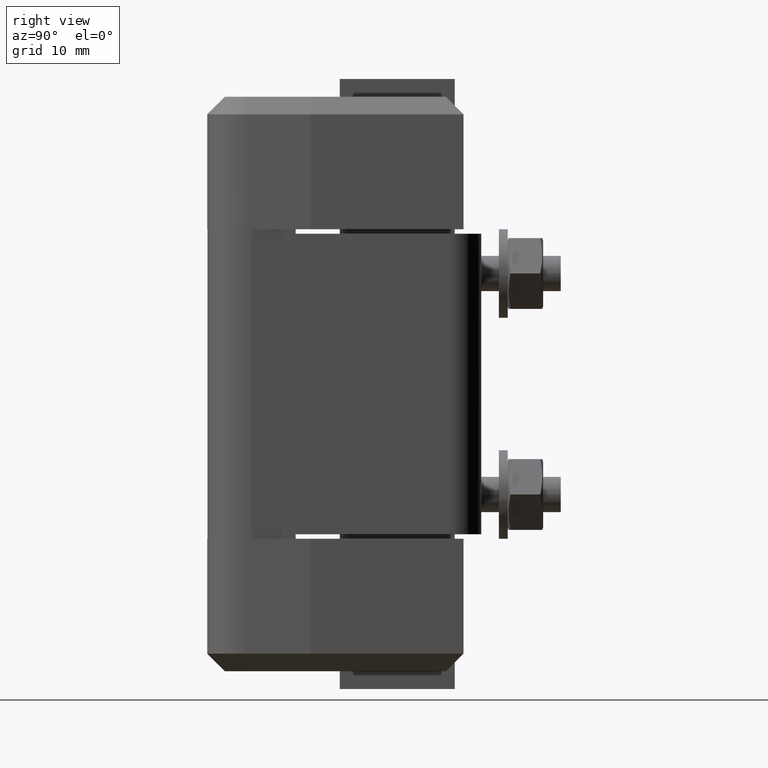
[diagram: clean part render]
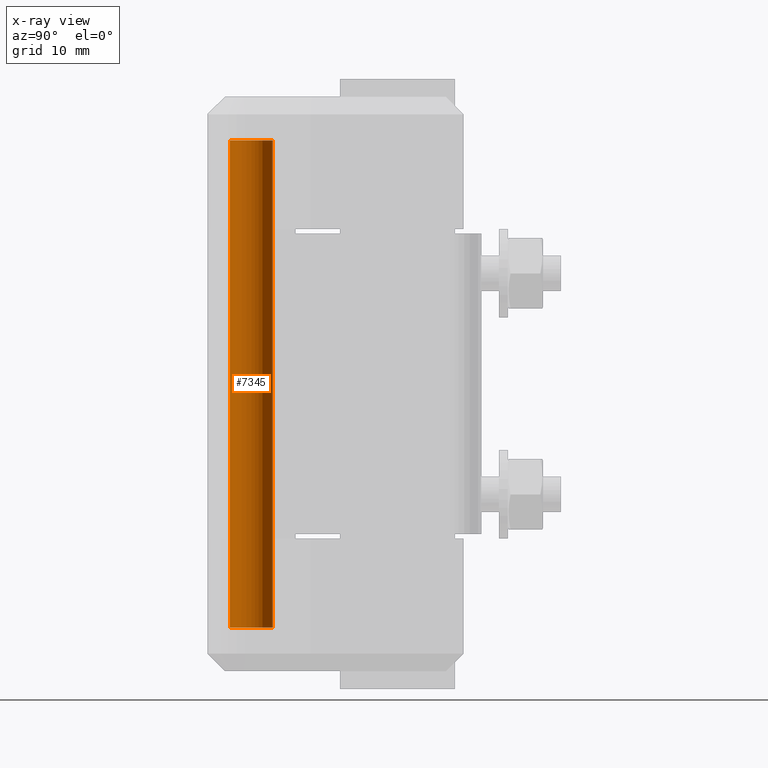
[diagram: x-ray — body ghosted, one internal face saturated and labeled with its STEP entity id]
A machine part, right view, then the same camera in x-ray: the body is ghosted and one INTERNAL B-rep face — a face not visible from any outside direction — is saturated and labeled: STEP entity #7345.
In plain terms, the highlighted face is a freeform B-spline surface patch.
Its self-contained STEP definition (entity closure, byte-faithful):
#7155=CARTESIAN_POINT('',(0.149568921871433,-2.445430256132825,60.050002134125783));
#7156=VERTEX_POINT('',#7155);
#7162=CARTESIAN_POINT('',(2.450000000000000,0.0,60.050002134125712));
#7163=VERTEX_POINT('',#7162);
#7164=CARTESIAN_POINT('',(2.450000000000000,0.0,60.050002134125712));
#7165=CARTESIAN_POINT('',(2.450000000000000,-2.304729863877276,60.050002134125691));
#7166=CARTESIAN_POINT('',(0.149568921871432,-2.445430256132825,60.050002134125776));
#7174=(BOUNDED_CURVE()B_SPLINE_CURVE(2,(#7164,#7165,#7166),.UNSPECIFIED.,.F.,.U.)B_SPLINE_CURVE_WITH_KNOTS((3,3),(0.500000000000000,0.739332962238854),.UNSPECIFIED.)CURVE()GEOMETRIC_REPRESENTATION_ITEM()RATIONAL_B_SPLINE_CURVE((1.0,0.719603993286814,0.976072041666527))REPRESENTATION_ITEM(''));
#7175=EDGE_CURVE('',#7163,#7156,#7174,.T.);
#7177=CARTESIAN_POINT('',(0.279546628680214,2.433999523909880,60.050002134125712));
#7178=VERTEX_POINT('',#7177);
#7179=CARTESIAN_POINT('',(0.279546628680214,2.433999523909880,60.050002134125712));
#7180=CARTESIAN_POINT('',(2.450000000000000,2.184721363891480,60.050002134125698));
#7181=CARTESIAN_POINT('',(2.450000000000000,0.0,60.050002134125712));
#7189=(BOUNDED_CURVE()B_SPLINE_CURVE(2,(#7179,#7180,#7181),.UNSPECIFIED.,.F.,.U.)B_SPLINE_CURVE_WITH_KNOTS((3,3),(0.269767755885833,0.500000000000000),.UNSPECIFIED.)CURVE()GEOMETRIC_REPRESENTATION_ITEM()RATIONAL_B_SPLINE_CURVE((0.957343736442468,0.730266147787029,1.0))REPRESENTATION_ITEM(''));
#7190=EDGE_CURVE('',#7178,#7163,#7189,.T.);
#7281=CARTESIAN_POINT('',(0.279546628613883,2.433999523917499,61.427502211332367));
#7282=CARTESIAN_POINT('',(2.320042101787359,2.199647123835899,61.427502211332353));
#7283=CARTESIAN_POINT('',(2.445430256133574,0.149568921860400,61.427502211332360));
#7284=CARTESIAN_POINT('',(2.594999177993973,-2.295861334273174,61.427502211332360));
#7285=CARTESIAN_POINT('',(0.149568921860400,-2.445430256133574,61.427502211332360));
#7286=CARTESIAN_POINT('',(0.279546628613883,2.433999523917499,3.538061466723178));
#7287=CARTESIAN_POINT('',(2.320042101787359,2.199647123835899,3.538061466723177));
#7288=CARTESIAN_POINT('',(2.445430256133574,0.149568921860400,3.538061466723178));
#7289=CARTESIAN_POINT('',(2.594999177993973,-2.295861334273174,3.538061466723178));
#7290=CARTESIAN_POINT('',(0.149568921860400,-2.445430256133574,3.538061466723178));
#7298=(BOUNDED_SURFACE()B_SPLINE_SURFACE(2,1,((#7281,#7286),(#7282,#7287),(#7283,#7288),(#7284,#7289),(#7285,#7290)),.UNSPECIFIED.,.F.,.F.,.U.)B_SPLINE_SURFACE_WITH_KNOTS((3,2,3),(2,2),(0.0,3.572177761905570,7.631470673161901),(0.0,57.889440744609189),.UNSPECIFIED.)GEOMETRIC_REPRESENTATION_ITEM()RATIONAL_B_SPLINE_SURFACE(((0.938140952186599,0.938140952186599),(0.742253967444162,0.742253967444162),(1.0,1.0),(0.707106781186548,0.707106781186548),(1.0,1.0)))REPRESENTATION_ITEM('')SURFACE());
#7299=CARTESIAN_POINT('',(0.279546628656408,2.433999523912615,4.949999045859991));
#7300=VERTEX_POINT('',#7299);
#7301=CARTESIAN_POINT('',(2.450000000000000,0.0,4.949999045859990));
#7302=VERTEX_POINT('',#7301);
#7303=CARTESIAN_POINT('',(0.279546628656408,2.433999523912614,4.949999045859991));
#7304=CARTESIAN_POINT('',(2.450000000000000,2.184721363934496,4.949999045859989));
#7305=CARTESIAN_POINT('',(2.450000000000000,0.0,4.949999045859990));
#7313=(BOUNDED_CURVE()B_SPLINE_CURVE(2,(#7303,#7304,#7305),.UNSPECIFIED.,.F.,.U.)B_SPLINE_CURVE_WITH_KNOTS((3,3),(0.269767755882523,0.500000000000000),.UNSPECIFIED.)CURVE()GEOMETRIC_REPRESENTATION_ITEM()RATIONAL_B_SPLINE_CURVE((0.957343736448999,0.730266147783150,1.0))REPRESENTATION_ITEM(''));
#7314=EDGE_CURVE('',#7300,#7302,#7313,.T.);
#7315=ORIENTED_EDGE('',*,*,#7314,.F.);
#7316=CARTESIAN_POINT('',(0.279546628680214,2.433999523909880,60.050002134125712));
#7317=CARTESIAN_POINT('',(0.279546628656408,2.433999523912615,4.949999045859991));
#7318=QUASI_UNIFORM_CURVE('',1,(#7316,#7317),.UNSPECIFIED.,.F.,.U.);
#7319=EDGE_CURVE('',#7178,#7300,#7318,.T.);
#7320=ORIENTED_EDGE('',*,*,#7319,.F.);
#7321=ORIENTED_EDGE('',*,*,#7190,.T.);
#7322=ORIENTED_EDGE('',*,*,#7175,.T.);
#7323=CARTESIAN_POINT('',(0.170896853889385,-2.443938861925631,4.949999045949983));
#7324=VERTEX_POINT('',#7323);
#7325=CARTESIAN_POINT('',(0.149568921871433,-2.445430256132825,60.050002134125783));
#7326=CARTESIAN_POINT('',(0.170896853889385,-2.443938861925631,4.949999045949983));
#7327=QUASI_UNIFORM_CURVE('',1,(#7325,#7326),.UNSPECIFIED.,.F.,.U.);
#7328=EDGE_CURVE('',#7156,#7324,#7327,.T.);
#7329=ORIENTED_EDGE('',*,*,#7328,.T.);
#7330=CARTESIAN_POINT('',(2.450000000000000,0.0,4.949999045859990));
#7331=CARTESIAN_POINT('',(2.449996746264741,-2.284615429812233,4.949999045904987));
#7332=CARTESIAN_POINT('',(0.170896853889385,-2.443938861925631,4.949999045949983));
#7340=(BOUNDED_CURVE()B_SPLINE_CURVE(2,(#7330,#7331,#7332),.UNSPECIFIED.,.F.,.U.)B_SPLINE_CURVE_WITH_KNOTS((3,3),(0.500000000000000,0.737829682948638),.UNSPECIFIED.)CURVE()GEOMETRIC_REPRESENTATION_ITEM()RATIONAL_B_SPLINE_CURVE((1.0,0.721365194527162,0.972871408606809))REPRESENTATION_ITEM(''));
#7341=EDGE_CURVE('',#7302,#7324,#7340,.T.);
#7342=ORIENTED_EDGE('',*,*,#7341,.F.);
#7343=EDGE_LOOP('',(#7315,#7320,#7321,#7322,#7329,#7342));
#7344=FACE_OUTER_BOUND('',#7343,.T.);
#7345=ADVANCED_FACE('',(#7344),#7298,.T.);